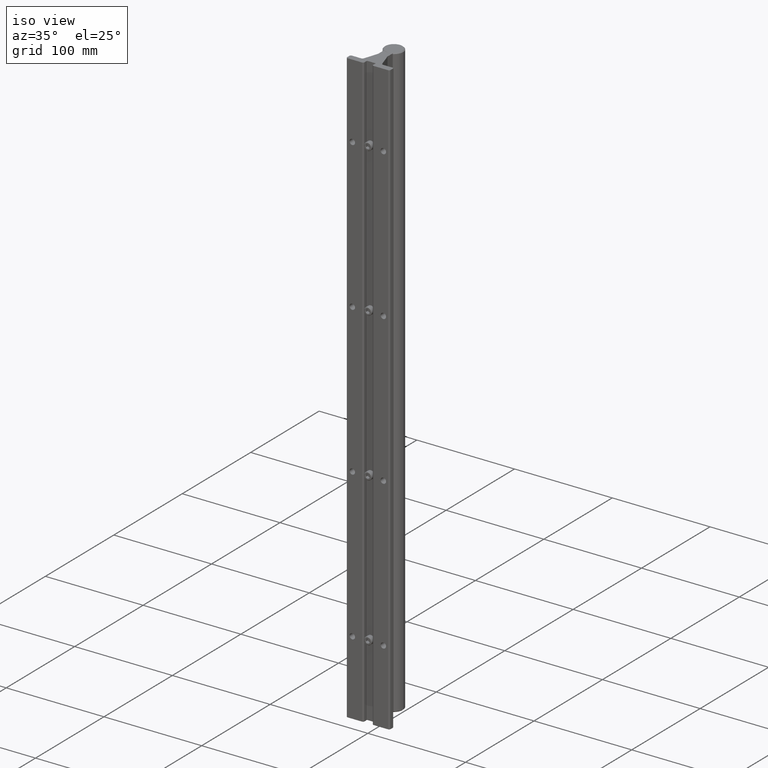
[diagram: clean part render]
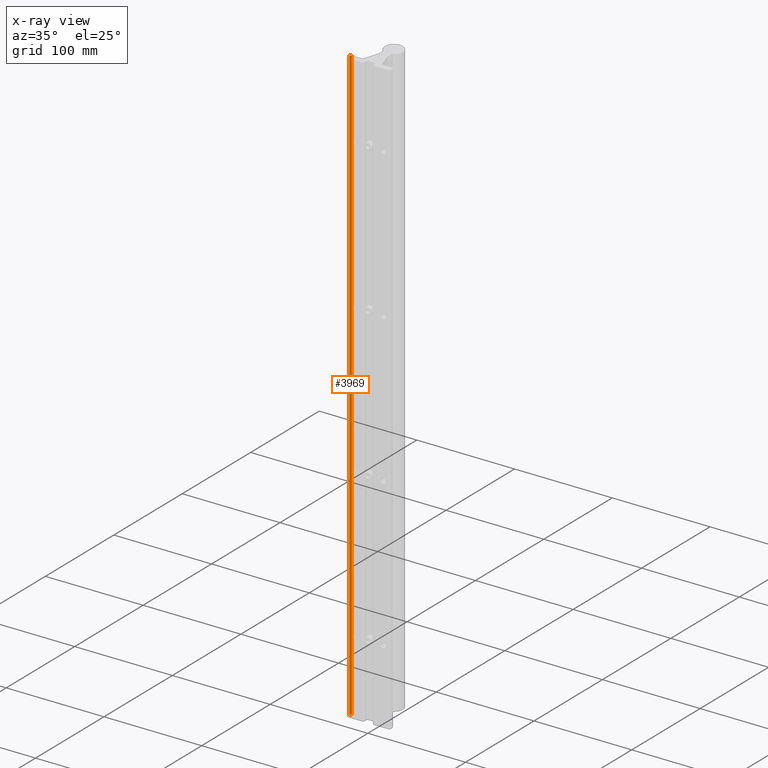
[diagram: x-ray — body ghosted, one internal face saturated and labeled with its STEP entity id]
A machine part, iso view, then the same camera in x-ray: the body is ghosted and one INTERNAL B-rep face — a face not visible from any outside direction — is saturated and labeled: STEP entity #3969.
In plain terms, the highlighted cylindrical surface (edge-blend (fillet) strip) has radius 1.524 mm, axis along (0, 0, 1).
Its self-contained STEP definition (entity closure, byte-faithful):
#27 = VECTOR ( 'NONE', #525, 39.37007874015748143 ) ;
#32 = CARTESIAN_POINT ( 'NONE',  ( -0.8150000000000001688, 0.2499999999999999167, 0.0000000000000000000 ) ) ;
#173 = ORIENTED_EDGE ( 'NONE', *, *, #3927, .F. ) ;
#207 = EDGE_CURVE ( 'NONE', #5206, #3882, #3914, .T. ) ;
#525 = DIRECTION ( 'NONE',  ( 0.0000000000000000000, 0.0000000000000000000, 1.000000000000000000 ) ) ;
#666 = AXIS2_PLACEMENT_3D ( 'NONE', #4064, #2519, #2098 ) ;
#966 = VERTEX_POINT ( 'NONE', #2874 ) ;
#1381 = EDGE_CURVE ( 'NONE', #966, #3990, #4456, .T. ) ;
#2098 = DIRECTION ( 'NONE',  ( 1.000000000000000000, 0.0000000000000000000, 0.0000000000000000000 ) ) ;
#2124 = EDGE_LOOP ( 'NONE', ( #3746, #5173, #173, #4362 ) ) ;
#2485 = DIRECTION ( 'NONE',  ( 1.000000000000000000, 0.0000000000000000000, 0.0000000000000000000 ) ) ;
#2519 = DIRECTION ( 'NONE',  ( -0.0000000000000000000, -0.0000000000000000000, -1.000000000000000000 ) ) ;
#2574 = CYLINDRICAL_SURFACE ( 'NONE', #3795, 0.05999999999999990757 ) ;
#2874 = CARTESIAN_POINT ( 'NONE',  ( -0.8150000000000001688, 0.2499999999999999167, -24.00000000000000355 ) ) ;
#2963 = CARTESIAN_POINT ( 'NONE',  ( -0.8150000000000001688, 0.1900000000000000300, 0.0000000000000000000 ) ) ;
#2997 = DIRECTION ( 'NONE',  ( 0.0000000000000000000, 0.0000000000000000000, 1.000000000000000000 ) ) ;
#3057 = EDGE_CURVE ( 'NONE', #5206, #966, #3263, .T. ) ;
#3263 = CIRCLE ( 'NONE', #666, 0.05999999999999990757 ) ;
#3353 = CARTESIAN_POINT ( 'NONE',  ( -0.8750000000000001110, 0.1900000000000000300, 0.0000000000000000000 ) ) ;
#3464 = AXIS2_PLACEMENT_3D ( 'NONE', #2963, #4352, #4837 ) ;
#3635 = CIRCLE ( 'NONE', #3464, 0.05999999999999990757 ) ;
#3746 = ORIENTED_EDGE ( 'NONE', *, *, #3057, .F. ) ;
#3795 = AXIS2_PLACEMENT_3D ( 'NONE', #5337, #4443, #2485 ) ;
#3882 = VERTEX_POINT ( 'NONE', #3353 ) ;
#3914 = LINE ( 'NONE', #5992, #27 ) ;
#3927 = EDGE_CURVE ( 'NONE', #3990, #3882, #3635, .T. ) ;
#3969 = ADVANCED_FACE ( 'NONE', ( #4188 ), #2574, .T. ) ;
#3981 = CARTESIAN_POINT ( 'NONE',  ( -0.8750000000000001110, 0.1900000000000000300, -24.00000000000000355 ) ) ;
#3990 = VERTEX_POINT ( 'NONE', #32 ) ;
#4064 = CARTESIAN_POINT ( 'NONE',  ( -0.8150000000000001688, 0.1900000000000000300, -24.00000000000000355 ) ) ;
#4188 = FACE_OUTER_BOUND ( 'NONE', #2124, .T. ) ;
#4352 = DIRECTION ( 'NONE',  ( 0.0000000000000000000, 0.0000000000000000000, 1.000000000000000000 ) ) ;
#4362 = ORIENTED_EDGE ( 'NONE', *, *, #1381, .F. ) ;
#4443 = DIRECTION ( 'NONE',  ( 0.0000000000000000000, 0.0000000000000000000, 1.000000000000000000 ) ) ;
#4456 = LINE ( 'NONE', #5489, #5919 ) ;
#4837 = DIRECTION ( 'NONE',  ( 1.000000000000000000, 0.0000000000000000000, 0.0000000000000000000 ) ) ;
#5173 = ORIENTED_EDGE ( 'NONE', *, *, #207, .T. ) ;
#5206 = VERTEX_POINT ( 'NONE', #3981 ) ;
#5337 = CARTESIAN_POINT ( 'NONE',  ( -0.8150000000000001688, 0.1900000000000000300, -26.10463218188032641 ) ) ;
#5489 = CARTESIAN_POINT ( 'NONE',  ( -0.8150000000000001688, 0.2499999999999999167, -26.10463218188032641 ) ) ;
#5919 = VECTOR ( 'NONE', #2997, 39.37007874015748143 ) ;
#5992 = CARTESIAN_POINT ( 'NONE',  ( -0.8750000000000001110, 0.1900000000000000300, -26.10463218188032641 ) ) ;